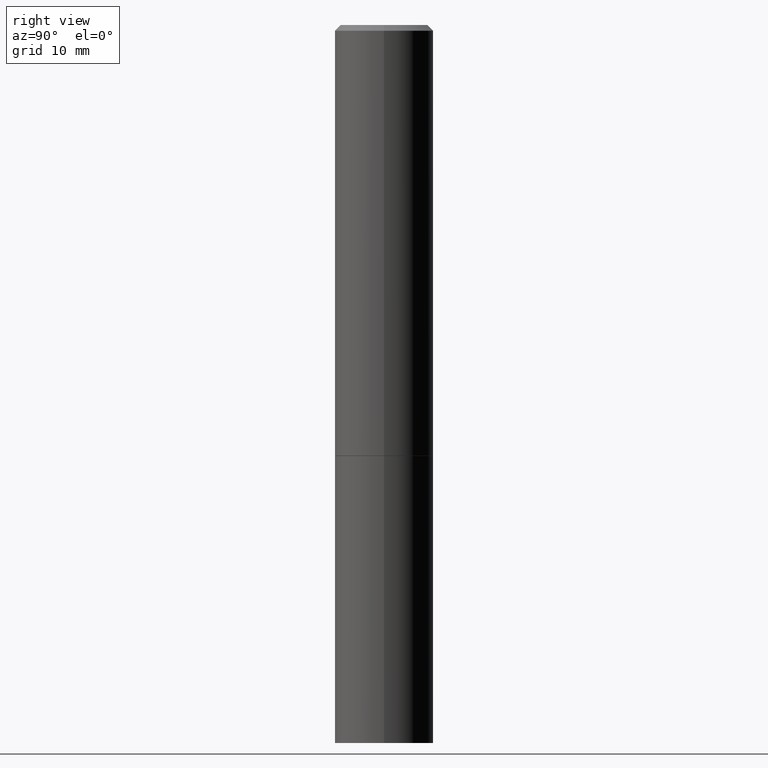
[diagram: clean part render]
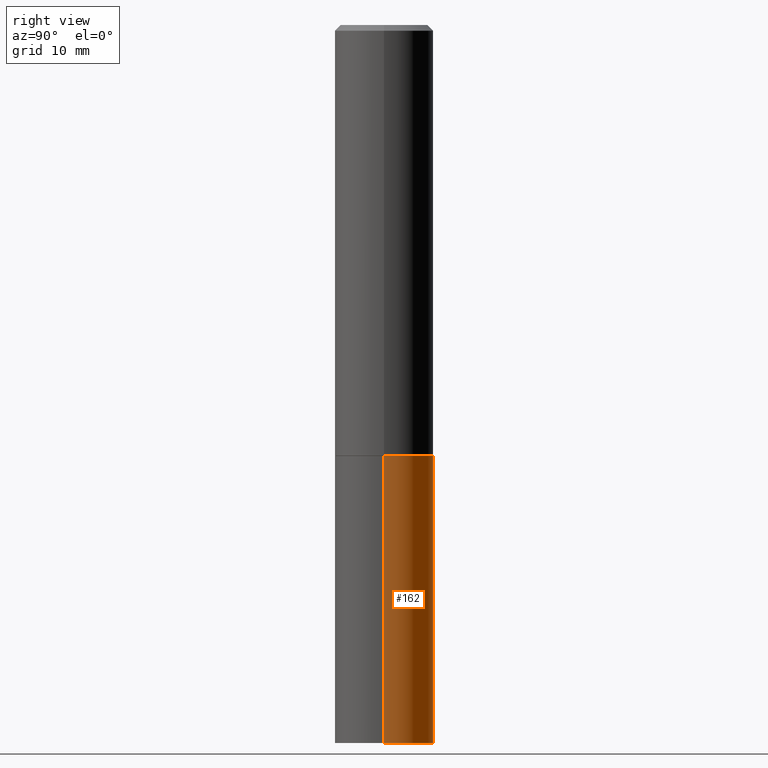
[diagram: same view with one face highlighted and labeled with its STEP entity id]
A machine part, right view. The second image highlights one B-rep face of the part: STEP entity #162.
In plain terms, the highlighted cylindrical surface (partial cylindrical patch) has radius 4.3663 mm, axis along (-0, 0, 1).
Its self-contained STEP definition (entity closure, byte-faithful):
#9 = DIRECTION ( 'NONE',  ( -2.445468806185136597E-29, 3.491481338843145583E-15, 1.000000000000000000 ) ) ;
#11 = AXIS2_PLACEMENT_3D ( 'NONE', #349, #291, #112 ) ;
#12 = EDGE_LOOP ( 'NONE', ( #260, #268, #53, #87 ) ) ;
#25 = DIRECTION ( 'NONE',  ( 1.000000000000000000, -6.982962677686268288E-15, 0.000000000000000000 ) ) ;
#41 = VECTOR ( 'NONE', #95, 39.37007874015748143 ) ;
#42 = EDGE_CURVE ( 'NONE', #303, #55, #99, .T. ) ;
#49 = EDGE_CURVE ( 'NONE', #106, #238, #178, .T. ) ;
#53 = ORIENTED_EDGE ( 'NONE', *, *, #42, .F. ) ;
#55 = VERTEX_POINT ( 'NONE', #150 ) ;
#67 = CARTESIAN_POINT ( 'NONE',  ( 0.1718999999999999695, -6.437593292558987418E-15, -1.500000000000000222 ) ) ;
#76 = LINE ( 'NONE', #191, #240 ) ;
#87 = ORIENTED_EDGE ( 'NONE', *, *, #186, .F. ) ;
#95 = DIRECTION ( 'NONE',  ( -2.445468806185136877E-29, 3.491481338843145188E-15, 1.000000000000000000 ) ) ;
#99 = CIRCLE ( 'NONE', #321, 0.1718999999999999695 ) ;
#106 = VERTEX_POINT ( 'NONE', #207 ) ;
#112 = DIRECTION ( 'NONE',  ( 1.000000000000000000, -6.982962677686268288E-15, 0.000000000000000000 ) ) ;
#137 = FACE_OUTER_BOUND ( 'NONE', #12, .T. ) ;
#139 = DIRECTION ( 'NONE',  ( -2.445468806185136877E-29, 3.491481338843145188E-15, 1.000000000000000000 ) ) ;
#146 = EDGE_CURVE ( 'NONE', #238, #55, #367, .T. ) ;
#150 = CARTESIAN_POINT ( 'NONE',  ( -0.1718999999999999695, -5.761539714914678571E-15, -1.500000000000000222 ) ) ;
#152 = DIRECTION ( 'NONE',  ( -2.445468806185136597E-29, 3.491481338843145583E-15, 1.000000000000000000 ) ) ;
#162 = ADVANCED_FACE ( 'NONE', ( #137 ), #212, .T. ) ;
#178 = CIRCLE ( 'NONE', #11, 0.1718999999999999695 ) ;
#186 = EDGE_CURVE ( 'NONE', #106, #303, #76, .T. ) ;
#191 = CARTESIAN_POINT ( 'NONE',  ( 0.1718999999999999695, -1.200371284294269044E-15, 8.382147877593213079E-30 ) ) ;
#200 = CARTESIAN_POINT ( 'NONE',  ( 3.668203209277704895E-29, -5.237222008264718177E-15, -1.500000000000000222 ) ) ;
#207 = CARTESIAN_POINT ( 'NONE',  ( 0.1718999999999998030, -9.908022952924788464E-15, -2.500000000000000000 ) ) ;
#212 = CYLINDRICAL_SURFACE ( 'NONE', #319, 0.1718999999999999695 ) ;
#217 = DIRECTION ( 'NONE',  ( 1.000000000000000000, -6.982962677686266711E-15, 4.876176775795936353E-29 ) ) ;
#238 = VERTEX_POINT ( 'NONE', #252 ) ;
#240 = VECTOR ( 'NONE', #139, 39.37007874015748143 ) ;
#252 = CARTESIAN_POINT ( 'NONE',  ( -0.1718999999999998030, -7.528332062813596490E-15, -2.500000000000000000 ) ) ;
#260 = ORIENTED_EDGE ( 'NONE', *, *, #49, .T. ) ;
#268 = ORIENTED_EDGE ( 'NONE', *, *, #146, .T. ) ;
#291 = DIRECTION ( 'NONE',  ( -2.445468806185136597E-29, 3.491481338843145583E-15, 1.000000000000000000 ) ) ;
#303 = VERTEX_POINT ( 'NONE', #67 ) ;
#319 = AXIS2_PLACEMENT_3D ( 'NONE', #333, #9, #217 ) ;
#321 = AXIS2_PLACEMENT_3D ( 'NONE', #200, #152, #25 ) ;
#333 = CARTESIAN_POINT ( 'NONE',  ( 0.000000000000000000, 0.000000000000000000, 0.000000000000000000 ) ) ;
#342 = CARTESIAN_POINT ( 'NONE',  ( -0.1718999999999999695, 1.221422962771612003E-15, -8.455649420148183180E-30 ) ) ;
#349 = CARTESIAN_POINT ( 'NONE',  ( 6.113672015462842613E-29, -8.728703347107864943E-15, -2.500000000000000000 ) ) ;
#367 = LINE ( 'NONE', #342, #41 ) ;